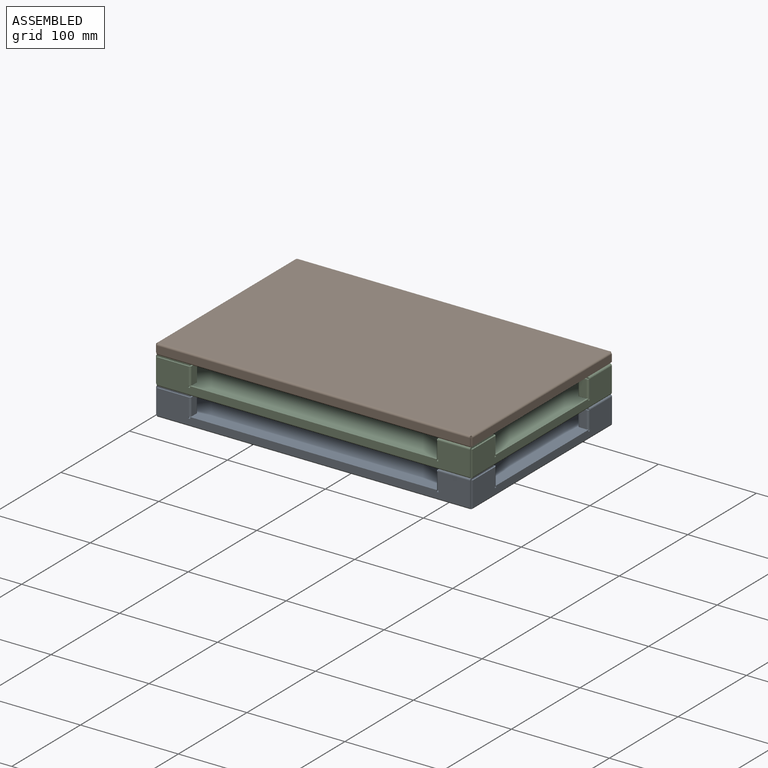
[diagram: assembled view]
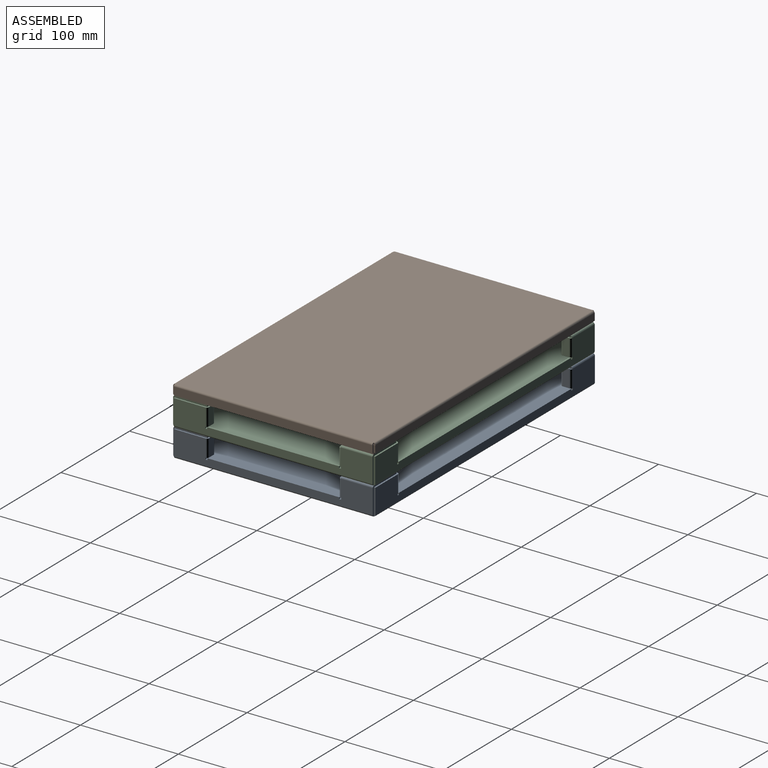
[diagram: assembled view, second angle]
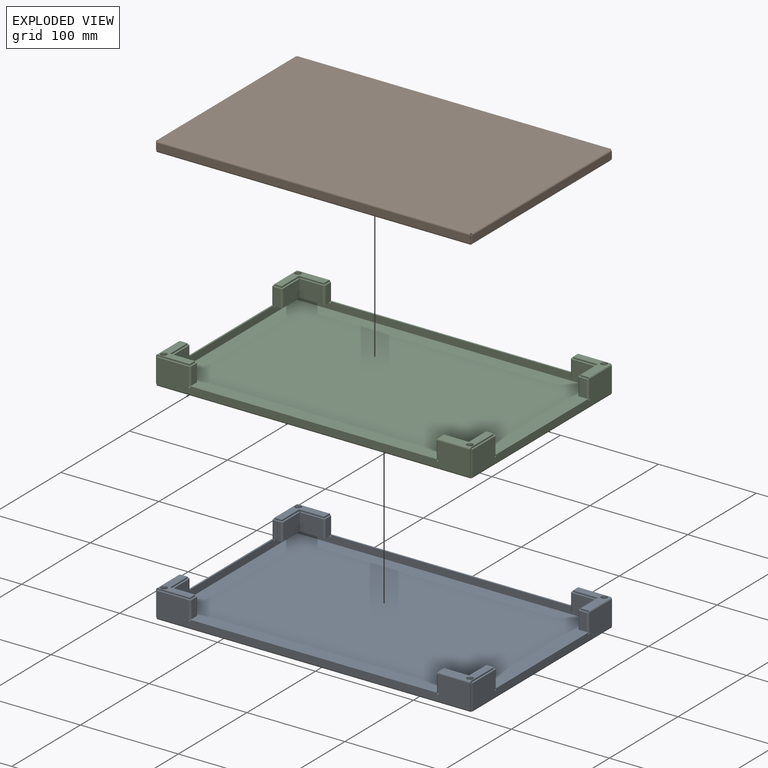
[diagram: exploded view]
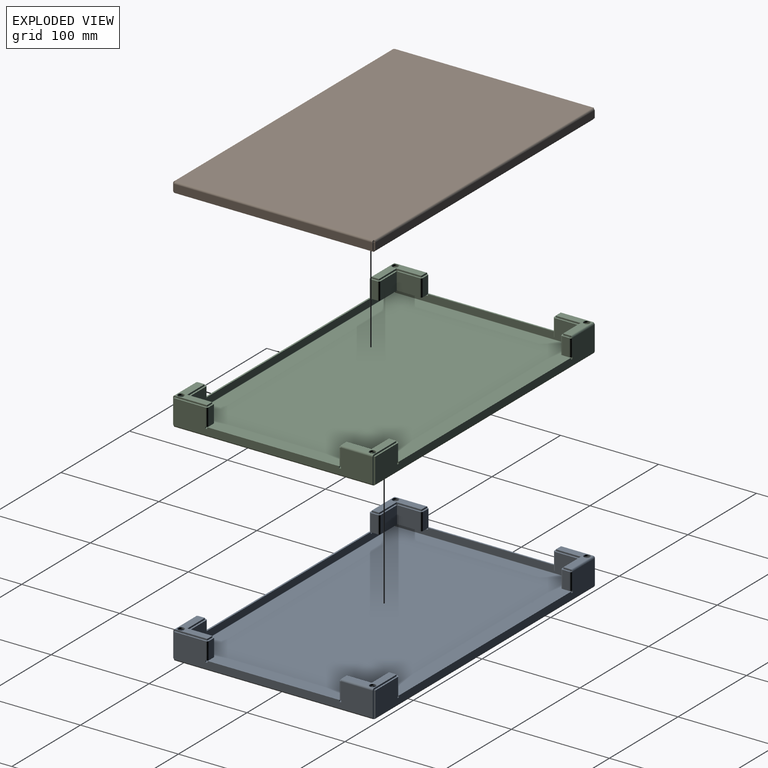
[diagram: exploded view, second angle]
ASSEMBLY  parts=3 mates=2
PART A: 274 faces, bbox 323.2x206.4x28.6 mm
  f0: plane 1.59x0.23mm, normal (0,1,0), area 0.4mm2, adj f5,f7,f8,f270
  f1: plane 32.74x1.59mm, normal (-1,0,0), area 52mm2, adj f2,f7,f8,f271
  f2: plane 7.57x1.59mm, normal (0,-1,0), area 12mm2, adj f1,f3,f7,f8
  f3: plane 25.4x1.59mm, normal (1,0,0), area 40.3mm2, adj f2,f4,f7,f8
  f4: plane 25.4x1.59mm, normal (0,-1,0), area 40.3mm2, adj f3,f5,f7,f8
  f5: plane 7.34x1.59mm, normal (1,0,0), area 11.7mm2, adj f0,f4,f7,f8
  f6: cylinder r=3.17mm len=6.35mm, axis (0,0,1), area 31.7mm2, adj f7,f8
  f7: plane 32.97x32.74mm, normal (0,0,1), area 402.6mm2, adj f0,f1,f2,f3,f4,f5,f6,f272
  f8: plane 32.97x32.74mm, normal (0,0,-1), area 402.6mm2, adj f0,f1,f2,f3,f4,f5,f6,f273
  f9: plane 1.59x0.23mm, normal (1,0,0), area 0.4mm2, adj f12,f16,f17,f153
  f10: plane 25.4x1.59mm, normal (0,-1,0), area 40.3mm2, adj f11,f14,f16,f17
  f11: plane 25.4x1.59mm, normal (-1,0,0), area 40.3mm2, adj f10,f12,f16,f17
  f12: plane 7.34x1.59mm, normal (0,-1,0), area 11.7mm2, adj f9,f11,f16,f17
  f13: plane 32.74x1.59mm, normal (0,1,0), area 52mm2, adj f14,f16,f17,f154
  f14: plane 7.57x1.59mm, normal (-1,0,0), area 12mm2, adj f10,f13,f16,f17
  f15: cylinder r=3.17mm len=6.35mm, axis (0,0,1), area 31.7mm2, adj f16,f17
  f16: plane 32.97x32.74mm, normal (0,0,1), area 402.6mm2, adj f9,f10,f11,f12,f13,f14,f15,f155
  f17: plane 32.97x32.74mm, normal (0,0,-1), area 402.6mm2, adj f9,f10,f11,f12,f13,f14,f15,f156
  f18: plane 1.59x0.23mm, normal (-1,0,0), area 0.4mm2, adj f21,f25,f26,f193
  f19: plane 25.4x1.59mm, normal (0,1,0), area 40.3mm2, adj f20,f23,f25,f26
  f20: plane 25.4x1.59mm, normal (1,0,0), area 40.3mm2, adj f19,f21,f25,f26
  f21: plane 7.34x1.59mm, normal (0,1,0), area 11.7mm2, adj f18,f20,f25,f26
  f22: plane 32.74x1.59mm, normal (0,-1,0), area 52mm2, adj f23,f25,f26,f192
  f23: plane 7.57x1.59mm, normal (1,0,0), area 12mm2, adj f19,f22,f25,f26
  f24: cylinder r=3.17mm len=6.35mm, axis (0,0,1), area 31.7mm2, adj f25,f26
  f25: plane 32.97x32.74mm, normal (0,0,1), area 402.6mm2, adj f18,f19,f20,f21,f22,f23,f24,f194
  f26: plane 32.97x32.74mm, normal (0,0,-1), area 402.6mm2, adj f18,f19,f20,f21,f22,f23,f24,f195
  f27: plane 1.59x0.23mm, normal (0,-1,0), area 0.4mm2, adj f29,f34,f35,f232
  f28: plane 25.4x1.59mm, normal (0,1,0), area 40.3mm2, adj f29,f33,f34,f35
  f29: plane 7.34x1.59mm, normal (-1,0,0), area 11.7mm2, adj f27,f28,f34,f35
  f30: plane 32.74x1.59mm, normal (1,0,0), area 52mm2, adj f31,f34,f35,f231
  f31: plane 7.57x1.59mm, normal (0,1,0), area 12mm2, adj f30,f33,f34,f35
  f32: cylinder r=3.17mm len=6.35mm, axis (0,0,1), area 31.7mm2, adj f34,f35
  f33: plane 25.4x1.59mm, normal (-1,0,0), area 40.3mm2, adj f28,f31,f34,f35
  f34: plane 32.97x32.74mm, normal (0,0,1), area 402.6mm2, adj f27,f28,f29,f30,f31,f32,f33,f233
  f35: plane 32.97x32.74mm, normal (0,0,-1), area 402.6mm2, adj f27,f28,f29,f30,f31,f32,f33,f234
  f36: plane 1.59x0.23mm, normal (0,0,-1), area 0.4mm2, adj f38,f39,f41,f137
  f37: plane 251.47x1.59mm, normal (0,0,1), area 398.9mm2, adj f38,f39,f46,f51,f251,f268
  f38: plane 319.99x25.12mm, normal (0,1,0), area 3505.7mm2, adj f36,f37,f40,f41,f42,f43,f44,f45
  f39: plane 319.99x25.12mm, normal (0,-1,0), area 3505.7mm2, adj f36,f37,f40,f41,f42,f43,f44,f45
  f40: plane 32.74x1.59mm, normal (0,0,1), area 52mm2, adj f38,f39,f41,f267
  f41: plane 25.12x1.59mm, normal (1,0,0), area 39.9mm2, adj f36,f38,f39,f40
  f42: plane 1.59x0.23mm, normal (0,0,-1), area 0.4mm2, adj f38,f39,f43,f138
  f43: plane 24.89x1.59mm, normal (-1,0,0), area 39.5mm2, adj f38,f39,f42,f271
  f44: plane 1.69x1.59mm, normal (-1,0,0), area 2.7mm2, adj f38,f39,f45,f47
  f45: plane 1.9x1.59mm, normal (0,0,1), area 3mm2, adj f38,f39,f44,f46
  f46: plane 1.69x1.59mm, normal (1,0,0), area 2.7mm2, adj f37,f38,f39,f45,f266
  f47: plane 1.59x0.38mm, normal (0,0,-1), area 0.6mm2, adj f38,f39,f44,f266
  f48: plane 1.9x1.59mm, normal (0,0,1), area 3mm2, adj f38,f39,f49,f51
  f49: plane 1.69x1.59mm, normal (1,0,0), area 2.7mm2, adj f38,f39,f48,f50
  f50: plane 1.59x0.38mm, normal (0,0,-1), area 0.6mm2, adj f38,f39,f49,f249
  f51: plane 1.69x1.59mm, normal (-1,0,0), area 2.7mm2, adj f37,f38,f39,f48,f249
  f52: plane 1.59x0.23mm, normal (0,0,-1), area 0.4mm2, adj f54,f55,f57,f146
  f53: plane 251.47x1.59mm, normal (0,0,1), area 398.9mm2, adj f54,f55,f62,f67,f211,f229
  f54: plane 319.99x25.12mm, normal (0,-1,0), area 3505.7mm2, adj f52,f53,f56,f57,f58,f59,f60,f61
  f55: plane 319.99x25.12mm, normal (0,1,0), area 3505.7mm2, adj f52,f53,f56,f57,f58,f59,f60,f61
  f56: plane 32.74x1.59mm, normal (0,0,1), area 52mm2, adj f54,f55,f57,f210
  f57: plane 25.12x1.59mm, normal (-1,0,0), area 39.9mm2, adj f52,f54,f55,f56
  f58: plane 1.59x0.23mm, normal (0,0,-1), area 0.4mm2, adj f54,f55,f59,f145
  f59: plane 24.89x1.59mm, normal (1,0,0), area 39.5mm2, adj f54,f55,f58,f231
  f60: plane 1.69x1.59mm, normal (1,0,0), area 2.7mm2, adj f54,f55,f61,f63
  f61: plane 1.9x1.59mm, normal (0,0,1), area 3mm2, adj f54,f55,f60,f62
  f62: plane 1.69x1.59mm, normal (-1,0,0), area 2.7mm2, adj f53,f54,f55,f61,f196
  f63: plane 1.59x0.38mm, normal (0,0,-1), area 0.6mm2, adj f54,f55,f60,f196
  f64: plane 1.9x1.59mm, normal (0,0,1), area 3mm2, adj f54,f55,f65,f67
  f65: plane 1.69x1.59mm, normal (-1,0,0), area 2.7mm2, adj f54,f55,f64,f66
  f66: plane 1.59x0.38mm, normal (0,0,-1), area 0.6mm2, adj f54,f55,f65,f227
  f67: plane 1.69x1.59mm, normal (1,0,0), area 2.7mm2, adj f53,f54,f55,f64,f227
  f68: plane 1.59x0.23mm, normal (0,0,-1), area 0.4mm2, adj f70,f71,f73,f142
  f69: plane 134.63x1.59mm, normal (0,0,1), area 213.4mm2, adj f70,f71,f78,f83,f172,f190
  f70: plane 203.15x25.12mm, normal (-1,0,0), area 2645.1mm2, adj f68,f69,f72,f73,f74,f75,f76,f77
  f71: plane 203.15x25.12mm, normal (1,0,0), area 2645.1mm2, adj f68,f69,f72,f73,f74,f75,f76,f77
  f72: plane 32.74x1.59mm, normal (0,0,1), area 52mm2, adj f70,f71,f73,f171
  f73: plane 25.12x1.59mm, normal (0,1,0), area 39.9mm2, adj f68,f70,f71,f72
  f74: plane 1.59x0.23mm, normal (0,0,-1), area 0.4mm2, adj f70,f71,f75,f141
  f75: plane 24.89x1.59mm, normal (0,-1,0), area 39.5mm2, adj f70,f71,f74,f192
  f76: plane 1.69x1.59mm, normal (0,-1,0), area 2.7mm2, adj f70,f71,f77,f79
  f77: plane 1.9x1.59mm, normal (0,0,1), area 3mm2, adj f70,f71,f76,f78
  f78: plane 1.69x1.59mm, normal (0,1,0), area 2.7mm2, adj f69,f70,f71,f77,f157
  f79: plane 1.59x0.38mm, normal (0,0,-1), area 0.6mm2, adj f70,f71,f76,f157
  f80: plane 1.9x1.59mm, normal (0,0,1), area 3mm2, adj f70,f71,f81,f83
  f81: plane 1.69x1.59mm, normal (0,1,0), area 2.7mm2, adj f70,f71,f80,f82
  f82: plane 1.59x0.38mm, normal (0,0,-1), area 0.6mm2, adj f70,f71,f81,f188
  f83: plane 1.69x1.59mm, normal (0,-1,0), area 2.7mm2, adj f69,f70,f71,f80,f188
  f84: plane 1.59x0.23mm, normal (0,0,-1), area 0.4mm2, adj f86,f87,f89,f149
  f85: plane 134.63x1.59mm, normal (0,0,1), area 213.4mm2, adj f86,f87,f94,f99,f116,f133
  f86: plane 203.15x25.12mm, normal (1,0,0), area 2645.1mm2, adj f84,f85,f88,f89,f90,f91,f92,f93
  f87: plane 203.15x25.12mm, normal (-1,0,0), area 2645.1mm2, adj f84,f85,f88,f89,f90,f91,f92,f93
  f88: plane 32.74x1.59mm, normal (0,0,1), area 52mm2, adj f86,f87,f89,f132
  f89: plane 25.12x1.59mm, normal (0,-1,0), area 39.9mm2, adj f84,f86,f87,f88
  f90: plane 1.59x0.23mm, normal (0,0,-1), area 0.4mm2, adj f86,f87,f91,f150
  f91: plane 24.89x1.59mm, normal (0,1,0), area 39.5mm2, adj f86,f87,f90,f154
  f92: plane 1.69x1.59mm, normal (0,1,0), area 2.7mm2, adj f86,f87,f93,f95
  f93: plane 1.9x1.59mm, normal (0,0,1), area 3mm2, adj f86,f87,f92,f94
  f94: plane 1.69x1.59mm, normal (0,-1,0), area 2.7mm2, adj f85,f86,f87,f93,f131
  f95: plane 1.59x0.38mm, normal (0,0,-1), area 0.6mm2, adj f86,f87,f92,f131
  f96: plane 1.9x1.59mm, normal (0,0,1), area 3mm2, adj f86,f87,f97,f99
  f97: plane 1.69x1.59mm, normal (0,-1,0), area 2.7mm2, adj f86,f87,f96,f98
  f98: plane 1.59x0.38mm, normal (0,0,-1), area 0.6mm2, adj f86,f87,f97,f114
  f99: plane 1.69x1.59mm, normal (0,1,0), area 2.7mm2, adj f85,f86,f87,f96,f114
  f100: plane 23.53x1.59mm, normal (0,0,1), area 37.4mm2, adj f101,f103,f104,f111
  f101: plane 17.75x1.59mm, normal (0,1,0), area 28.2mm2, adj f100,f102,f103,f104
  f102: plane 23.53x1.59mm, normal (0,0,-1), area 37.4mm2, adj f101,f103,f104,f110
  f103: plane 23.53x17.75mm, normal (-1,0,0), area 417.8mm2, adj f100,f101,f102,f112
  f104: plane 23.53x17.75mm, normal (1,0,0), area 417.8mm2, adj f100,f101,f102,f113
  f105: plane 1.59x0.23mm, normal (1,0,0), area 0.4mm2, adj f106,f108,f109,f115
  f106: plane 7.11x1.59mm, normal (0,0,1), area 11.3mm2, adj f105,f108,f109,f111
  f107: plane 7.11x1.59mm, normal (0,0,-1), area 11.3mm2, adj f108,f109,f110,f114
  f108: plane 17.75x7.11mm, normal (0,-1,0), area 126.3mm2, adj f105,f106,f107,f112,f116
  f109: plane 17.75x7.11mm, normal (0,1,0), area 126.3mm2, adj f105,f106,f107,f113,f117
  f110: plane 1.84x1.84mm, normal (0,0,-1), area 2.6mm2, adj f102,f107,f112,f113
  f111: plane 1.84x1.84mm, normal (0,0,1), area 2.6mm2, adj f100,f106,f112,f113
  f112: cylinder r=1.84mm len=17.75mm, axis (0,0,-1), area 51.4mm2, adj f103,f108,f110,f111
  f113: cylinder r=0.25mm len=17.75mm, axis (0,0,-1), area 7.1mm2, adj f104,f109,f110,f111
  f114: plane 1.84x1.84mm, normal (0,0,-1), area 2.5mm2, adj f87,f98,f99,f107,f116,f117
  f115: plane 1.84x1.84mm, normal (0,0,1), area 2.6mm2, adj f105,f116,f117,f153
  f116: cylinder r=1.84mm len=17.53mm, axis (0,0,-1), area 50.7mm2, adj f85,f86,f108,f114,f115
  f117: cylinder r=0.25mm len=17.53mm, axis (0,0,-1), area 7mm2, adj f87,f109,f114,f115
  f118: plane 23.53x1.59mm, normal (0,0,1), area 37.4mm2, adj f120,f121,f122,f128
  f119: plane 23.53x1.59mm, normal (0,0,-1), area 37.4mm2, adj f120,f121,f122,f127
  f120: plane 17.75x1.59mm, normal (0,-1,0), area 28.2mm2, adj f118,f119,f121,f122
  f121: plane 23.53x17.75mm, normal (-1,0,0), area 417.8mm2, adj f118,f119,f120,f129
  f122: plane 23.53x17.75mm, normal (1,0,0), area 417.8mm2, adj f118,f119,f120,f130
  f123: plane 7.11x1.59mm, normal (0,0,1), area 11.3mm2, adj f125,f126,f128,f132
  f124: plane 7.11x1.59mm, normal (0,0,-1), area 11.3mm2, adj f125,f126,f127,f131
  f125: plane 17.75x7.11mm, normal (0,1,0), area 126.3mm2, adj f123,f124,f129,f133
  f126: plane 17.75x7.11mm, normal (0,-1,0), area 126.3mm2, adj f123,f124,f130,f134
  f127: plane 1.84x1.84mm, normal (0,0,-1), area 2.6mm2, adj f119,f124,f129,f130
  f128: plane 1.84x1.84mm, normal (0,0,1), area 2.6mm2, adj f118,f123,f129,f130
  f129: cylinder r=1.84mm len=17.75mm, axis (0,0,-1), area 51.4mm2, adj f121,f125,f127,f128
  f130: cylinder r=0.25mm len=17.75mm, axis (0,0,-1), area 7.1mm2, adj f122,f126,f127,f128
  f131: plane 1.84x1.84mm, normal (0,0,-1), area 2.5mm2, adj f87,f94,f95,f124,f133,f134
  f132: plane 1.84x1.84mm, normal (0,0,1), area 2.6mm2, adj f88,f123,f133,f134
  f133: cylinder r=1.84mm len=17.75mm, axis (0,0,-1), area 51.4mm2, adj f85,f86,f125,f131,f132
  f134: cylinder r=0.25mm len=17.75mm, axis (0,0,-1), area 7.1mm2, adj f87,f126,f131,f132
  f135: plane 319.53x202.69mm, normal (0,0,-1), area 64766.6mm2, adj f139,f143,f147,f151
  f136: plane 319.53x202.69mm, normal (0,0,1), area 64766.6mm2, adj f140,f144,f148,f152
  f137: plane 1.84x1.84mm, normal (1,0,0), area 2.6mm2, adj f36,f139,f140,f150
  f138: plane 1.84x1.84mm, normal (-1,0,0), area 2.6mm2, adj f42,f139,f140,f142
  f139: cylinder r=1.84mm len=319.53mm, axis (1,0,0), area 924.3mm2, adj f38,f135,f137,f138
  f140: cylinder r=0.25mm len=319.53mm, axis (1,0,0), area 127.5mm2, adj f39,f136,f137,f138
  f141: plane 1.84x1.84mm, normal (0,-1,0), area 2.6mm2, adj f74,f143,f144,f146
  f142: plane 1.84x1.84mm, normal (0,1,0), area 2.6mm2, adj f68,f138,f143,f144
  f143: cylinder r=1.84mm len=202.69mm, axis (0,-1,0), area 586.3mm2, adj f70,f135,f141,f142
  f144: cylinder r=0.25mm len=202.69mm, axis (0,-1,0), area 80.9mm2, adj f71,f136,f141,f142
  f145: plane 1.84x1.84mm, normal (1,0,0), area 2.6mm2, adj f58,f147,f148,f149
  f146: plane 1.84x1.84mm, normal (-1,0,0), area 2.6mm2, adj f52,f141,f147,f148
  f147: cylinder r=1.84mm len=319.53mm, axis (1,0,0), area 924.3mm2, adj f54,f135,f145,f146
  f148: cylinder r=0.25mm len=319.53mm, axis (1,0,0), area 127.5mm2, adj f55,f136,f145,f146
  f149: plane 1.84x1.84mm, normal (0,-1,0), area 2.6mm2, adj f84,f145,f151,f152
  f150: plane 1.84x1.84mm, normal (0,1,0), area 2.6mm2, adj f90,f137,f151,f152
  f151: cylinder r=1.84mm len=202.69mm, axis (0,-1,0), area 586.3mm2, adj f86,f135,f149,f150
  f152: cylinder r=0.25mm len=202.69mm, axis (0,-1,0), area 80.9mm2, adj f87,f136,f149,f150
  f153: plane 1.84x1.84mm, normal (0,-1,0), area 2.6mm2, adj f9,f115,f155,f156
  f154: plane 1.84x1.84mm, normal (0,1,0), area 2.6mm2, adj f13,f91,f155,f156
  f155: cylinder r=1.84mm len=32.74mm, axis (0,-1,0), area 94.7mm2, adj f16,f86,f153,f154
  f156: cylinder r=0.25mm len=32.74mm, axis (0,-1,0), area 13.1mm2, adj f17,f87,f153,f154
  f157: plane 1.84x1.84mm, normal (0,0,-1), area 2.5mm2, adj f71,f78,f79,f164,f172,f173
  f158: plane 23.53x1.59mm, normal (0,0,1), area 37.4mm2, adj f160,f161,f162,f168
  f159: plane 23.53x1.59mm, normal (0,0,-1), area 37.4mm2, adj f160,f161,f162,f167
  f160: plane 17.75x1.59mm, normal (0,1,0), area 28.2mm2, adj f158,f159,f161,f162
  f161: plane 23.53x17.75mm, normal (1,0,0), area 417.8mm2, adj f158,f159,f160,f169
  f162: plane 23.53x17.75mm, normal (-1,0,0), area 417.8mm2, adj f158,f159,f160,f170
  f163: plane 7.11x1.59mm, normal (0,0,1), area 11.3mm2, adj f165,f166,f168,f171
  f164: plane 7.11x1.59mm, normal (0,0,-1), area 11.3mm2, adj f157,f165,f166,f167
  f165: plane 17.75x7.11mm, normal (0,-1,0), area 126.3mm2, adj f163,f164,f169,f172
  f166: plane 17.75x7.11mm, normal (0,1,0), area 126.3mm2, adj f163,f164,f170,f173
  f167: plane 1.84x1.84mm, normal (0,0,-1), area 2.6mm2, adj f159,f164,f169,f170
  f168: plane 1.84x1.84mm, normal (0,0,1), area 2.6mm2, adj f158,f163,f169,f170
  f169: cylinder r=1.84mm len=17.75mm, axis (0,0,-1), area 51.4mm2, adj f161,f165,f167,f168
  f170: cylinder r=0.25mm len=17.75mm, axis (0,0,-1), area 7.1mm2, adj f162,f166,f167,f168
  f171: plane 1.84x1.84mm, normal (0,0,1), area 2.6mm2, adj f72,f163,f172,f173
  f172: cylinder r=1.84mm len=17.75mm, axis (0,0,-1), area 51.4mm2, adj f69,f70,f157,f165,f171
  f173: cylinder r=0.25mm len=17.75mm, axis (0,0,-1), area 7.1mm2, adj f71,f157,f166,f171
  f174: plane 1.59x0.23mm, normal (-1,0,0), area 0.4mm2, adj f175,f177,f178,f189
  f175: plane 7.11x1.59mm, normal (0,0,1), area 11.3mm2, adj f174,f177,f178,f185
  f176: plane 7.11x1.59mm, normal (0,0,-1), area 11.3mm2, adj f177,f178,f184,f188
  f177: plane 17.75x7.11mm, normal (0,1,0), area 126.3mm2, adj f174,f175,f176,f186,f190
  f178: plane 17.75x7.11mm, normal (0,-1,0), area 126.3mm2, adj f174,f175,f176,f187,f191
  f179: plane 23.53x1.59mm, normal (0,0,1), area 37.4mm2, adj f180,f182,f183,f185
  f180: plane 17.75x1.59mm, normal (0,-1,0), area 28.2mm2, adj f179,f181,f182,f183
  f181: plane 23.53x1.59mm, normal (0,0,-1), area 37.4mm2, adj f180,f182,f183,f184
  f182: plane 23.53x17.75mm, normal (1,0,0), area 417.8mm2, adj f179,f180,f181,f186
  f183: plane 23.53x17.75mm, normal (-1,0,0), area 417.8mm2, adj f179,f180,f181,f187
  f184: plane 1.84x1.84mm, normal (0,0,-1), area 2.6mm2, adj f176,f181,f186,f187
  f185: plane 1.84x1.84mm, normal (0,0,1), area 2.6mm2, adj f175,f179,f186,f187
  f186: cylinder r=1.84mm len=17.75mm, axis (0,0,-1), area 51.4mm2, adj f177,f182,f184,f185
  f187: cylinder r=0.25mm len=17.75mm, axis (0,0,-1), area 7.1mm2, adj f178,f183,f184,f185
  f188: plane 1.84x1.84mm, normal (0,0,-1), area 2.5mm2, adj f71,f82,f83,f176,f190,f191
  f189: plane 1.84x1.84mm, normal (0,0,1), area 2.6mm2, adj f174,f190,f191,f193
  f190: cylinder r=1.84mm len=17.53mm, axis (0,0,-1), area 50.7mm2, adj f69,f70,f177,f188,f189
  f191: cylinder r=0.25mm len=17.53mm, axis (0,0,-1), area 7mm2, adj f71,f178,f188,f189
  f192: plane 1.84x1.84mm, normal (0,-1,0), area 2.6mm2, adj f22,f75,f194,f195
  f193: plane 1.84x1.84mm, normal (0,1,0), area 2.6mm2, adj f18,f189,f194,f195
  f194: cylinder r=1.84mm len=32.74mm, axis (0,-1,0), area 94.7mm2, adj f25,f70,f192,f193
  f195: cylinder r=0.25mm len=32.74mm, axis (0,-1,0), area 13.1mm2, adj f26,f71,f192,f193
  f196: plane 1.84x1.84mm, normal (0,0,-1), area 2.5mm2, adj f55,f62,f63,f203,f211,f212
  f197: plane 17.75x1.59mm, normal (-1,0,0), area 28.2mm2, adj f198,f199,f200,f201
  f198: plane 23.53x1.59mm, normal (0,0,1), area 37.4mm2, adj f197,f200,f201,f207
  f199: plane 23.53x1.59mm, normal (0,0,-1), area 37.4mm2, adj f197,f200,f201,f206
  f200: plane 23.53x17.75mm, normal (0,1,0), area 417.8mm2, adj f197,f198,f199,f208
  f201: plane 23.53x17.75mm, normal (0,-1,0), area 417.8mm2, adj f197,f198,f199,f209
  f202: plane 7.11x1.59mm, normal (0,0,1), area 11.3mm2, adj f204,f205,f207,f210
  f203: plane 7.11x1.59mm, normal (0,0,-1), area 11.3mm2, adj f196,f204,f205,f206
  f204: plane 17.75x7.11mm, normal (1,0,0), area 126.3mm2, adj f202,f203,f208,f211
  f205: plane 17.75x7.11mm, normal (-1,0,0), area 126.3mm2, adj f202,f203,f209,f212
  f206: plane 1.84x1.84mm, normal (0,0,-1), area 2.6mm2, adj f199,f203,f208,f209
  f207: plane 1.84x1.84mm, normal (0,0,1), area 2.6mm2, adj f198,f202,f208,f209
  f208: cylinder r=1.84mm len=17.75mm, axis (0,0,-1), area 51.4mm2, adj f200,f204,f206,f207
  f209: cylinder r=0.25mm len=17.75mm, axis (0,0,-1), area 7.1mm2, adj f201,f205,f206,f207
  f210: plane 1.84x1.84mm, normal (0,0,1), area 2.6mm2, adj f56,f202,f211,f212
  f211: cylinder r=1.84mm len=17.75mm, axis (0,0,-1), area 51.4mm2, adj f53,f54,f196,f204,f210
  f212: cylinder r=0.25mm len=17.75mm, axis (0,0,-1), area 7.1mm2, adj f55,f196,f205,f210
  f213: plane 7.11x1.59mm, normal (0,0,1), area 11.3mm2, adj f215,f216,f217,f224
  f214: plane 7.11x1.59mm, normal (0,0,-1), area 11.3mm2, adj f216,f217,f223,f227
  f215: plane 1.59x0.23mm, normal (0,-1,0), area 0.4mm2, adj f213,f216,f217,f228
  f216: plane 17.75x7.11mm, normal (-1,0,0), area 126.3mm2, adj f213,f214,f215,f225,f229
  f217: plane 17.75x7.11mm, normal (1,0,0), area 126.3mm2, adj f213,f214,f215,f226,f230
  f218: plane 23.53x1.59mm, normal (0,0,1), area 37.4mm2, adj f219,f221,f222,f224
  f219: plane 17.75x1.59mm, normal (1,0,0), area 28.2mm2, adj f218,f220,f221,f222
  f220: plane 23.53x1.59mm, normal (0,0,-1), area 37.4mm2, adj f219,f221,f222,f223
  f221: plane 23.53x17.75mm, normal (0,1,0), area 417.8mm2, adj f218,f219,f220,f225
  f222: plane 23.53x17.75mm, normal (0,-1,0), area 417.8mm2, adj f218,f219,f220,f226
  f223: plane 1.84x1.84mm, normal (0,0,-1), area 2.6mm2, adj f214,f220,f225,f226
  f224: plane 1.84x1.84mm, normal (0,0,1), area 2.6mm2, adj f213,f218,f225,f226
  f225: cylinder r=1.84mm len=17.75mm, axis (0,0,-1), area 51.4mm2, adj f216,f221,f223,f224
  f226: cylinder r=0.25mm len=17.75mm, axis (0,0,-1), area 7.1mm2, adj f217,f222,f223,f224
  f227: plane 1.84x1.84mm, normal (0,0,-1), area 2.5mm2, adj f55,f66,f67,f214,f229,f230
  f228: plane 1.84x1.84mm, normal (0,0,1), area 2.6mm2, adj f215,f229,f230,f232
  f229: cylinder r=1.84mm len=17.53mm, axis (0,0,-1), area 50.7mm2, adj f53,f54,f216,f227,f228
  f230: cylinder r=0.25mm len=17.53mm, axis (0,0,-1), area 7mm2, adj f55,f217,f227,f228
  f231: plane 1.84x1.84mm, normal (1,0,0), area 2.6mm2, adj f30,f59,f233,f234
  f232: plane 1.84x1.84mm, normal (-1,0,0), area 2.6mm2, adj f27,f228,f233,f234
  f233: cylinder r=1.84mm len=32.74mm, axis (1,0,0), area 94.7mm2, adj f34,f54,f231,f232
  f234: cylinder r=0.25mm len=32.74mm, axis (1,0,0), area 13.1mm2, adj f35,f55,f231,f232
  f235: plane 7.11x1.59mm, normal (0,0,1), area 11.3mm2, adj f237,f238,f239,f246
  f236: plane 7.11x1.59mm, normal (0,0,-1), area 11.3mm2, adj f238,f239,f245,f249
  f237: plane 1.59x0.23mm, normal (0,1,0), area 0.4mm2, adj f235,f238,f239,f250
  f238: plane 17.75x7.11mm, normal (1,0,0), area 126.3mm2, adj f235,f236,f237,f247,f251
  f239: plane 17.75x7.11mm, normal (-1,0,0), area 126.3mm2, adj f235,f236,f237,f248,f252
  f240: plane 23.53x1.59mm, normal (0,0,1), area 37.4mm2, adj f241,f243,f244,f246
  f241: plane 17.75x1.59mm, normal (-1,0,0), area 28.2mm2, adj f240,f242,f243,f244
  f242: plane 23.53x1.59mm, normal (0,0,-1), area 37.4mm2, adj f241,f243,f244,f245
  f243: plane 23.53x17.75mm, normal (0,-1,0), area 417.8mm2, adj f240,f241,f242,f247
  f244: plane 23.53x17.75mm, normal (0,1,0), area 417.8mm2, adj f240,f241,f242,f248
  f245: plane 1.84x1.84mm, normal (0,0,-1), area 2.6mm2, adj f236,f242,f247,f248
  f246: plane 1.84x1.84mm, normal (0,0,1), area 2.6mm2, adj f235,f240,f247,f248
  f247: cylinder r=1.84mm len=17.75mm, axis (0,0,-1), area 51.4mm2, adj f238,f243,f245,f246
  f248: cylinder r=0.25mm len=17.75mm, axis (0,0,-1), area 7.1mm2, adj f239,f244,f245,f246
  f249: plane 1.84x1.84mm, normal (0,0,-1), area 2.5mm2, adj f39,f50,f51,f236,f251,f252
  f250: plane 1.84x1.84mm, normal (0,0,1), area 2.6mm2, adj f237,f251,f252,f270
  f251: cylinder r=1.84mm len=17.53mm, axis (0,0,-1), area 50.7mm2, adj f37,f38,f238,f249,f250
  f252: cylinder r=0.25mm len=17.53mm, axis (0,0,-1), area 7mm2, adj f39,f239,f249,f250
  f253: plane 7.11x1.59mm, normal (0,0,1), area 11.3mm2, adj f255,f256,f263,f267
  f254: plane 7.11x1.59mm, normal (0,0,-1), area 11.3mm2, adj f255,f256,f262,f266
  f255: plane 17.75x7.11mm, normal (-1,0,0), area 126.3mm2, adj f253,f254,f264,f268
  f256: plane 17.75x7.11mm, normal (1,0,0), area 126.3mm2, adj f253,f254,f265,f269
  f257: plane 17.75x1.59mm, normal (1,0,0), area 28.2mm2, adj f258,f259,f260,f261
  f258: plane 23.53x1.59mm, normal (0,0,1), area 37.4mm2, adj f257,f260,f261,f263
  f259: plane 23.53x1.59mm, normal (0,0,-1), area 37.4mm2, adj f257,f260,f261,f262
  f260: plane 23.53x17.75mm, normal (0,-1,0), area 417.8mm2, adj f257,f258,f259,f264
  f261: plane 23.53x17.75mm, normal (0,1,0), area 417.8mm2, adj f257,f258,f259,f265
  f262: plane 1.84x1.84mm, normal (0,0,-1), area 2.6mm2, adj f254,f259,f264,f265
  f263: plane 1.84x1.84mm, normal (0,0,1), area 2.6mm2, adj f253,f258,f264,f265
  f264: cylinder r=1.84mm len=17.75mm, axis (0,0,-1), area 51.4mm2, adj f255,f260,f262,f263
  f265: cylinder r=0.25mm len=17.75mm, axis (0,0,-1), area 7.1mm2, adj f256,f261,f262,f263
  f266: plane 1.84x1.84mm, normal (0,0,-1), area 2.5mm2, adj f39,f46,f47,f254,f268,f269
  f267: plane 1.84x1.84mm, normal (0,0,1), area 2.6mm2, adj f40,f253,f268,f269
  f268: cylinder r=1.84mm len=17.75mm, axis (0,0,-1), area 51.4mm2, adj f37,f38,f255,f266,f267
  f269: cylinder r=0.25mm len=17.75mm, axis (0,0,-1), area 7.1mm2, adj f39,f256,f266,f267
  f270: plane 1.84x1.84mm, normal (1,0,0), area 2.6mm2, adj f0,f250,f272,f273
  f271: plane 1.84x1.84mm, normal (-1,0,0), area 2.6mm2, adj f1,f43,f272,f273
  f272: cylinder r=1.84mm len=32.74mm, axis (1,0,0), area 94.7mm2, adj f7,f38,f270,f271
  f273: cylinder r=0.25mm len=32.74mm, axis (1,0,0), area 13.1mm2, adj f8,f39,f270,f271
PART B: 54 faces, bbox 323.2x206.4x10.8 mm
  f0: plane 1.59x0.23mm, normal (0,0,-1), area 0.4mm2, adj f2,f5,f6,f50
  f1: plane 319.99x1.59mm, normal (0,0,1), area 508mm2, adj f2,f4,f5,f6
  f2: plane 7.34x1.59mm, normal (1,0,0), area 11.7mm2, adj f0,f1,f5,f6
  f3: plane 1.59x0.23mm, normal (0,0,-1), area 0.4mm2, adj f4,f5,f6,f51
  f4: plane 7.34x1.59mm, normal (-1,0,0), area 11.7mm2, adj f1,f3,f5,f6
  f5: plane 319.99x7.34mm, normal (0,1,0), area 2348.9mm2, adj f0,f1,f2,f3,f4,f52
  f6: plane 319.99x7.34mm, normal (0,-1,0), area 2348.9mm2, adj f0,f1,f2,f3,f4,f53
  f7: plane 319.53x202.69mm, normal (0,0,-1), area 64766.6mm2, adj f26,f37,f48,f52
  f8: plane 319.53x202.69mm, normal (0,0,1), area 64766.6mm2, adj f27,f38,f49,f53
  f9: plane 202.92x1.59mm, normal (1,0,0), area 322.1mm2, adj f10,f12,f13,f20
  f10: plane 319.99x1.59mm, normal (0,1,0), area 508mm2, adj f9,f11,f12,f13
  f11: plane 202.92x1.59mm, normal (-1,0,0), area 322.1mm2, adj f10,f12,f13,f21
  f12: plane 319.99x202.92mm, normal (0,0,1), area 64932.4mm2, adj f9,f10,f11,f22
  f13: plane 319.99x202.92mm, normal (0,0,-1), area 64932.4mm2, adj f9,f10,f11,f23
  f14: plane 1.59x0.23mm, normal (0,0,-1), area 0.4mm2, adj f15,f18,f19,f25
  f15: plane 7.11x1.59mm, normal (-1,0,0), area 11.3mm2, adj f14,f18,f19,f21
  f16: plane 1.59x0.23mm, normal (0,0,-1), area 0.4mm2, adj f17,f18,f19,f24
  f17: plane 7.11x1.59mm, normal (1,0,0), area 11.3mm2, adj f16,f18,f19,f20
  f18: plane 319.99x7.11mm, normal (0,-1,0), area 2275.8mm2, adj f14,f15,f16,f17,f22,f26
  f19: plane 319.99x7.11mm, normal (0,1,0), area 2275.8mm2, adj f14,f15,f16,f17,f23,f27
  f20: plane 1.84x1.84mm, normal (1,0,0), area 2.6mm2, adj f9,f17,f22,f23
  f21: plane 1.84x1.84mm, normal (-1,0,0), area 2.6mm2, adj f11,f15,f22,f23
  f22: cylinder r=1.84mm len=319.99mm, axis (1,0,0), area 925.6mm2, adj f12,f18,f20,f21
  f23: cylinder r=0.25mm len=319.99mm, axis (1,0,0), area 127.7mm2, adj f13,f19,f20,f21
  f24: plane 1.84x1.84mm, normal (1,0,0), area 2.6mm2, adj f16,f26,f27,f46
  f25: plane 1.84x1.84mm, normal (-1,0,0), area 2.6mm2, adj f14,f26,f27,f35
  f26: cylinder r=1.84mm len=319.53mm, axis (1,0,0), area 924.3mm2, adj f7,f18,f24,f25
  f27: cylinder r=0.25mm len=319.53mm, axis (1,0,0), area 127.5mm2, adj f8,f19,f24,f25
  f28: plane 1.59x0.23mm, normal (0,0,-1), area 0.4mm2, adj f30,f33,f34,f36
  f29: plane 203.15x1.59mm, normal (0,0,1), area 322.5mm2, adj f30,f32,f33,f34
  f30: plane 7.34x1.59mm, normal (0,1,0), area 11.7mm2, adj f28,f29,f33,f34
  f31: plane 1.59x0.23mm, normal (0,0,-1), area 0.4mm2, adj f32,f33,f34,f35
  f32: plane 7.34x1.59mm, normal (0,-1,0), area 11.7mm2, adj f29,f31,f33,f34
  f33: plane 203.15x7.34mm, normal (-1,0,0), area 1491.2mm2, adj f28,f29,f30,f31,f32,f37
  f34: plane 203.15x7.34mm, normal (1,0,0), area 1491.2mm2, adj f28,f29,f30,f31,f32,f38
  f35: plane 1.84x1.84mm, normal (0,-1,0), area 2.6mm2, adj f25,f31,f37,f38
  f36: plane 1.84x1.84mm, normal (0,1,0), area 2.6mm2, adj f28,f37,f38,f51
  f37: cylinder r=1.84mm len=202.69mm, axis (0,-1,0), area 586.3mm2, adj f7,f33,f35,f36
  f38: cylinder r=0.25mm len=202.69mm, axis (0,-1,0), area 80.9mm2, adj f8,f34,f35,f36
  f39: plane 1.59x0.23mm, normal (0,0,-1), area 0.4mm2, adj f41,f44,f45,f46
  f40: plane 203.15x1.59mm, normal (0,0,1), area 322.5mm2, adj f41,f43,f44,f45
  f41: plane 7.34x1.59mm, normal (0,-1,0), area 11.7mm2, adj f39,f40,f44,f45
  f42: plane 1.59x0.23mm, normal (0,0,-1), area 0.4mm2, adj f43,f44,f45,f47
  f43: plane 7.34x1.59mm, normal (0,1,0), area 11.7mm2, adj f40,f42,f44,f45
  f44: plane 203.15x7.34mm, normal (1,0,0), area 1491.2mm2, adj f39,f40,f41,f42,f43,f48
  f45: plane 203.15x7.34mm, normal (-1,0,0), area 1491.2mm2, adj f39,f40,f41,f42,f43,f49
  f46: plane 1.84x1.84mm, normal (0,-1,0), area 2.6mm2, adj f24,f39,f48,f49
  f47: plane 1.84x1.84mm, normal (0,1,0), area 2.6mm2, adj f42,f48,f49,f50
  f48: cylinder r=1.84mm len=202.69mm, axis (0,-1,0), area 586.3mm2, adj f7,f44,f46,f47
  f49: cylinder r=0.25mm len=202.69mm, axis (0,-1,0), area 80.9mm2, adj f8,f45,f46,f47
  f50: plane 1.84x1.84mm, normal (1,0,0), area 2.6mm2, adj f0,f47,f52,f53
  f51: plane 1.84x1.84mm, normal (-1,0,0), area 2.6mm2, adj f3,f36,f52,f53
  f52: cylinder r=1.84mm len=319.53mm, axis (1,0,0), area 924.3mm2, adj f5,f7,f50,f51
  f53: cylinder r=0.25mm len=319.53mm, axis (1,0,0), area 127.5mm2, adj f6,f8,f50,f51
PART C: same geometry as A
PLACE A at identity
PLACE B rot(axis=(0,1,0),180deg) t=(0,-0.23,64.77)mm
PLACE C t=(0,-0.23,28.58)mm
MATE fastened B.f12 <-> C.f25  axis (0,0,-1) through (-159.99,-101.57,55.56)mm
MATE fastened C.f135 <-> A.f25  axis (0,0,-1) through (-159.77,-101.57,26.99)mm
